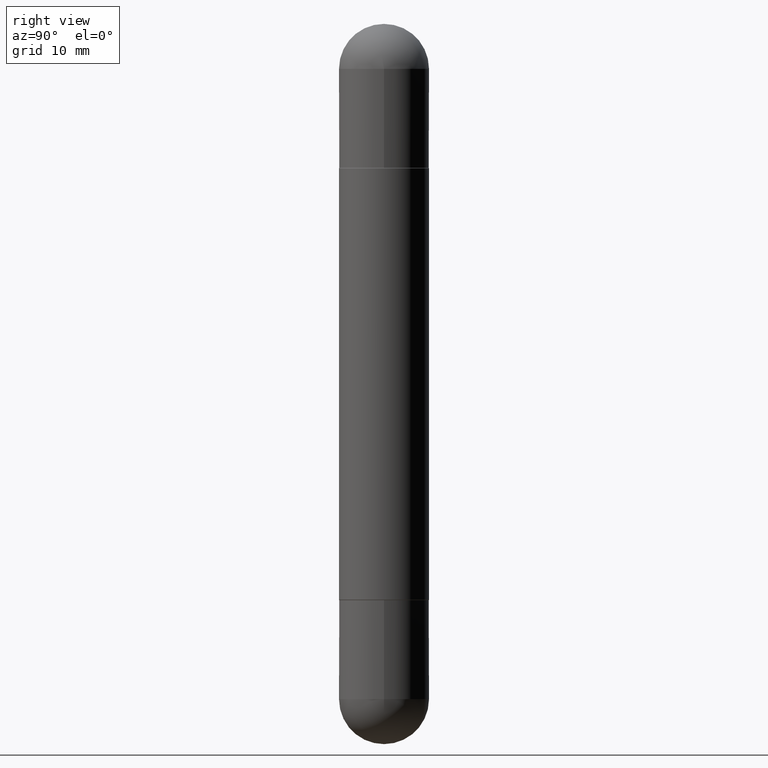
[diagram: clean part render]
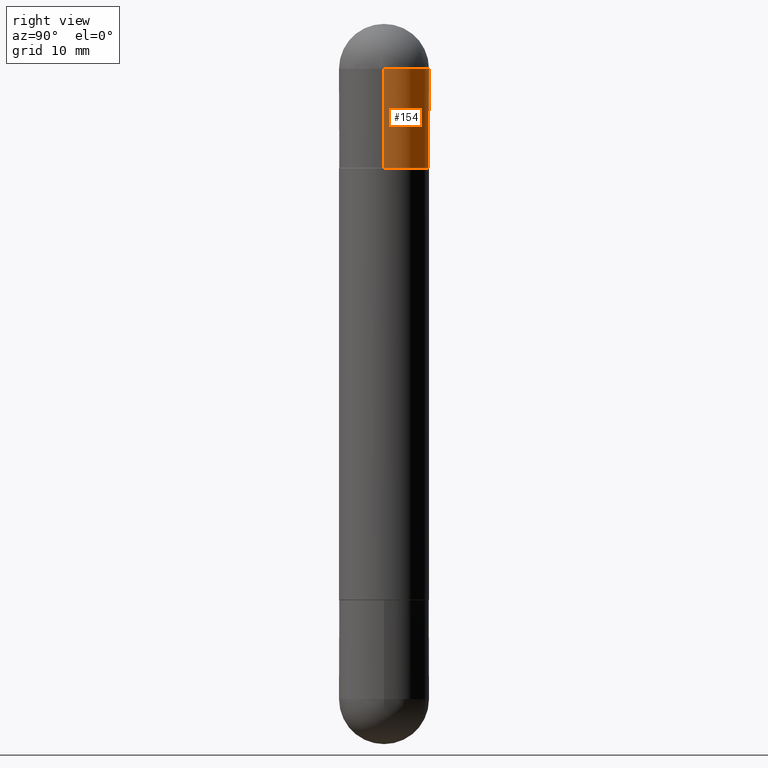
[diagram: same view with one face highlighted and labeled with its STEP entity id]
A machine part, right view. The second image highlights one B-rep face of the part: STEP entity #154.
In plain terms, the highlighted cylindrical surface (partial cylindrical patch) has radius 3.9688 mm, axis along (-0, 0, -1).
Its self-contained STEP definition (entity closure, byte-faithful):
#10 = EDGE_CURVE ( 'NONE', #573, #451, #263, .T. ) ;
#13 = EDGE_CURVE ( 'NONE', #764, #256, #341, .T. ) ;
#18 = DIRECTION ( 'NONE',  ( 1.000000000000000000, -6.982962677686269077E-15, 0.000000000000000000 ) ) ;
#20 = AXIS2_PLACEMENT_3D ( 'NONE', #459, #405, #663 ) ;
#21 = CIRCLE ( 'NONE', #629, 0.1562500000000000000 ) ;
#51 = CARTESIAN_POINT ( 'NONE',  ( -0.1562500000000000000, -6.511108220648155468E-15, -0.5000000000000006661 ) ) ;
#99 = CARTESIAN_POINT ( 'NONE',  ( 0.1562500000000000000, -1.091087918388479174E-15, -2.500000000000000444 ) ) ;
#102 = ORIENTED_EDGE ( 'NONE', *, *, #129, .F. ) ;
#129 = EDGE_CURVE ( 'NONE', #451, #256, #147, .T. ) ;
#145 = DIRECTION ( 'NONE',  ( 2.445468806185136597E-29, -3.491481338843145583E-15, 1.000000000000000000 ) ) ;
#147 = LINE ( 'NONE', #338, #440 ) ;
#154 = ADVANCED_FACE ( 'NONE', ( #756 ), #441, .T. ) ;
#169 = ORIENTED_EDGE ( 'NONE', *, *, #10, .F. ) ;
#181 = EDGE_CURVE ( 'NONE', #388, #764, #797, .T. ) ;
#234 = CARTESIAN_POINT ( 'NONE',  ( 0.1562500000000000000, -8.074050596074770339E-15, -0.5000000000000006661 ) ) ;
#240 = DIRECTION ( 'NONE',  ( -2.445468806185136877E-29, 3.491481338843145188E-15, -1.000000000000000000 ) ) ;
#256 = VERTEX_POINT ( 'NONE', #51 ) ;
#263 = CIRCLE ( 'NONE', #20, 0.1562500000000000000 ) ;
#268 = CARTESIAN_POINT ( 'NONE',  ( 5.731567514496413899E-29, -8.183159387913622595E-15, -0.1562500000000005551 ) ) ;
#286 = DIRECTION ( 'NONE',  ( -2.445468806185136877E-29, 3.491481338843145188E-15, -1.000000000000000000 ) ) ;
#308 = ORIENTED_EDGE ( 'NONE', *, *, #181, .T. ) ;
#319 = ORIENTED_EDGE ( 'NONE', *, *, #13, .T. ) ;
#338 = CARTESIAN_POINT ( 'NONE',  ( -0.1562500000000000000, 1.071952812151801807E-15, -2.500000000000000444 ) ) ;
#341 = CIRCLE ( 'NONE', #644, 0.1562500000000000000 ) ;
#349 = CARTESIAN_POINT ( 'NONE',  ( 4.890937612370273194E-29, -6.982962677686291165E-15, -0.5000000000000006661 ) ) ;
#374 = AXIS2_PLACEMENT_3D ( 'NONE', #701, #381, #636 ) ;
#379 = CARTESIAN_POINT ( 'NONE',  ( 0.1562500000000000000, -8.674148951188436448E-15, -0.1562500000000005551 ) ) ;
#381 = DIRECTION ( 'NONE',  ( -2.445468806185136597E-29, 3.491481338843145583E-15, -1.000000000000000000 ) ) ;
#383 = CARTESIAN_POINT ( 'NONE',  ( -0.1562500000000000000, -6.511108220648156257E-15, -0.1562500000000005551 ) ) ;
#388 = VERTEX_POINT ( 'NONE', #379 ) ;
#405 = DIRECTION ( 'NONE',  ( 2.445468806185136597E-29, -3.491481338843145583E-15, 1.000000000000000000 ) ) ;
#440 = VECTOR ( 'NONE', #286, 39.37007874015748143 ) ;
#441 = CYLINDRICAL_SURFACE ( 'NONE', #374, 0.1562500000000000000 ) ;
#451 = VERTEX_POINT ( 'NONE', #383 ) ;
#459 = CARTESIAN_POINT ( 'NONE',  ( 5.731567514496413899E-29, -8.183159387913622595E-15, -0.1562500000000005551 ) ) ;
#460 = CARTESIAN_POINT ( 'NONE',  ( 1.091087918388535577E-15, 0.1562499999999916733, -0.1562500000000000000 ) ) ;
#511 = EDGE_LOOP ( 'NONE', ( #102, #169, #630, #308, #319 ) ) ;
#520 = DIRECTION ( 'NONE',  ( 1.000000000000000000, -6.982962677686262766E-15, 0.000000000000000000 ) ) ;
#561 = VECTOR ( 'NONE', #240, 39.37007874015748143 ) ;
#573 = VERTEX_POINT ( 'NONE', #460 ) ;
#593 = EDGE_CURVE ( 'NONE', #388, #573, #21, .T. ) ;
#629 = AXIS2_PLACEMENT_3D ( 'NONE', #268, #780, #520 ) ;
#630 = ORIENTED_EDGE ( 'NONE', *, *, #593, .F. ) ;
#636 = DIRECTION ( 'NONE',  ( 1.000000000000000000, -6.982962677686266711E-15, 0.000000000000000000 ) ) ;
#644 = AXIS2_PLACEMENT_3D ( 'NONE', #349, #145, #18 ) ;
#663 = DIRECTION ( 'NONE',  ( 1.000000000000000000, -6.982962677686262766E-15, 0.000000000000000000 ) ) ;
#701 = CARTESIAN_POINT ( 'NONE',  ( 0.000000000000000000, 0.000000000000000000, -2.500000000000000444 ) ) ;
#756 = FACE_OUTER_BOUND ( 'NONE', #511, .T. ) ;
#764 = VERTEX_POINT ( 'NONE', #234 ) ;
#780 = DIRECTION ( 'NONE',  ( 2.445468806185136597E-29, -3.491481338843145583E-15, 1.000000000000000000 ) ) ;
#797 = LINE ( 'NONE', #99, #561 ) ;